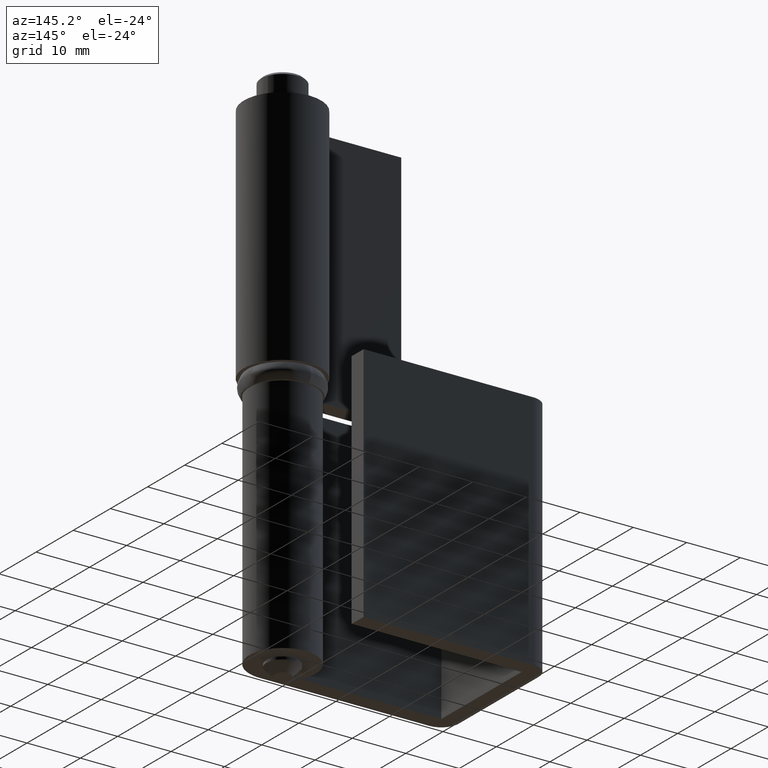
[diagram: clean part render]
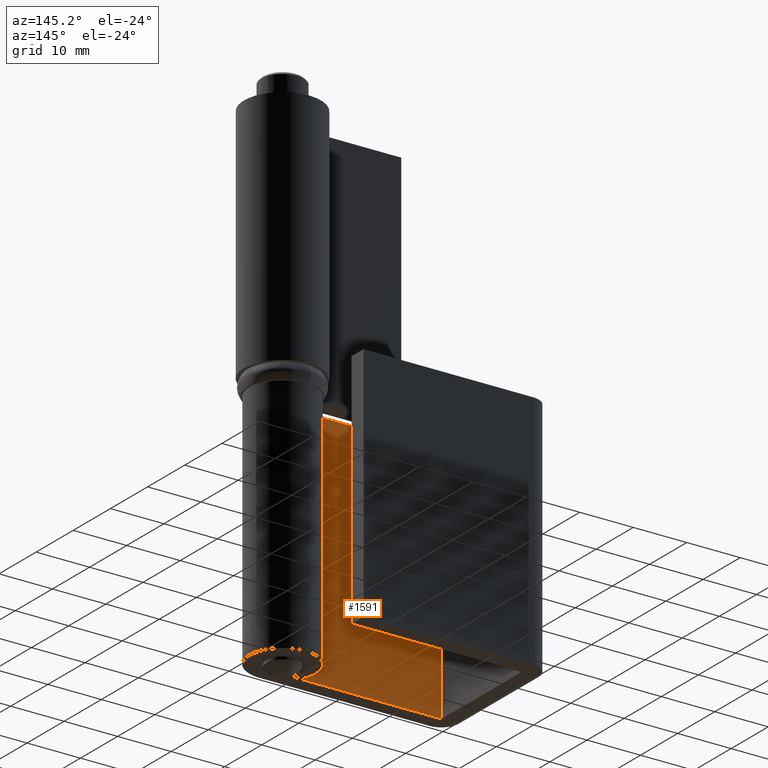
[diagram: same view with one face highlighted and labeled with its STEP entity id]
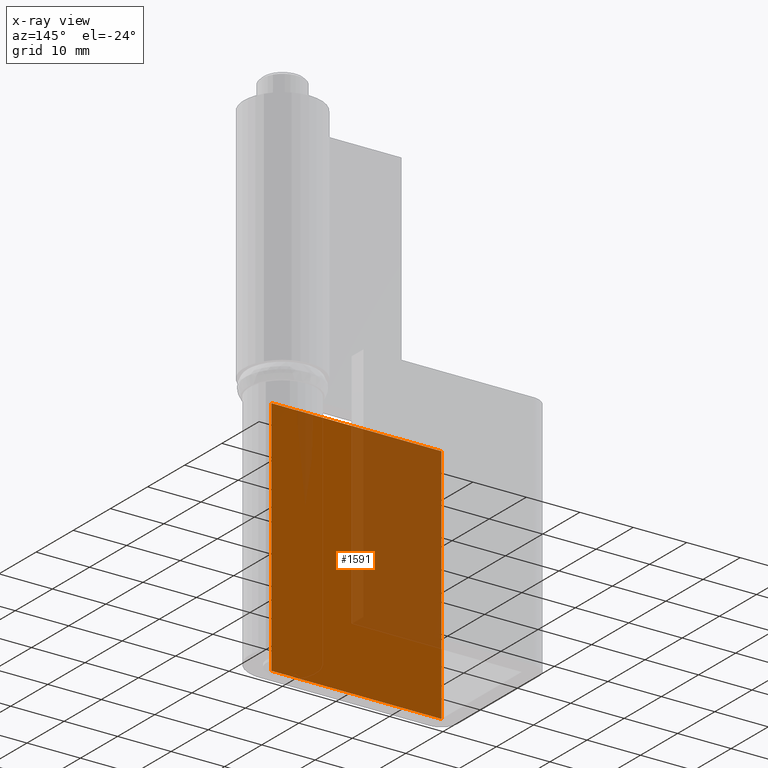
[diagram: x-ray of the same camera — body ghosted, the highlighted face saturated]
A machine part, auxiliary view. The second image highlights one B-rep face of the part: STEP entity #1591.
The next image is the same camera in x-ray: the body ghosted, the highlighted face saturated — about 41% of this face is hidden behind the body in this view.
In plain terms, the highlighted face is a freeform B-spline surface patch.
Its self-contained STEP definition (entity closure, byte-faithful):
#1298=CARTESIAN_POINT('',(-31.800003000000000,-3.0,2.0));
#1299=VERTEX_POINT('',#1298);
#1305=CARTESIAN_POINT('',(1.836910E-016,-3.0,2.0));
#1306=VERTEX_POINT('',#1305);
#1307=CARTESIAN_POINT('',(1.836910E-016,-3.0,2.0));
#1308=CARTESIAN_POINT('',(-31.800003000000000,-3.0,2.0));
#1309=QUASI_UNIFORM_CURVE('',1,(#1307,#1308),.UNSPECIFIED.,.F.,.U.);
#1310=EDGE_CURVE('',#1306,#1299,#1309,.T.);
#1520=CARTESIAN_POINT('',(1.836910E-016,-3.0,47.0));
#1521=VERTEX_POINT('',#1520);
#1541=CARTESIAN_POINT('',(-31.800003000000000,-3.0,47.0));
#1542=VERTEX_POINT('',#1541);
#1543=CARTESIAN_POINT('',(1.836910E-016,-3.0,47.0));
#1544=CARTESIAN_POINT('',(-31.800003000000000,-3.0,47.0));
#1545=QUASI_UNIFORM_CURVE('',1,(#1543,#1544),.UNSPECIFIED.,.F.,.U.);
#1546=EDGE_CURVE('',#1521,#1542,#1545,.T.);
#1568=CARTESIAN_POINT('',(-31.800003000000000,-3.0,47.0));
#1569=CARTESIAN_POINT('',(-31.800003000000000,-3.0,2.0));
#1570=QUASI_UNIFORM_CURVE('',1,(#1568,#1569),.UNSPECIFIED.,.F.,.U.);
#1571=EDGE_CURVE('',#1542,#1299,#1570,.T.);
#1576=CARTESIAN_POINT('',(-33.388413386731102,-3.0,49.247749912781281));
#1577=CARTESIAN_POINT('',(-33.388413386731102,-3.0,-0.247751119775324));
#1578=CARTESIAN_POINT('',(1.588410955359469,-3.0,49.247749912781281));
#1579=CARTESIAN_POINT('',(1.588410955359469,-3.0,-0.247751119775324));
#1580=B_SPLINE_SURFACE_WITH_KNOTS('',1,1,((#1576,#1578),(#1577,#1579)),.UNSPECIFIED.,.F.,.F.,.U.,(2,2),(2,2),(0.0,49.495501032556596),(0.0,34.976824342090573),.UNSPECIFIED.);
#1581=ORIENTED_EDGE('',*,*,#1310,.T.);
#1582=ORIENTED_EDGE('',*,*,#1571,.F.);
#1583=ORIENTED_EDGE('',*,*,#1546,.F.);
#1584=CARTESIAN_POINT('',(1.836910E-016,-3.0,47.0));
#1585=CARTESIAN_POINT('',(1.836910E-016,-3.0,2.0));
#1586=QUASI_UNIFORM_CURVE('',1,(#1584,#1585),.UNSPECIFIED.,.F.,.U.);
#1587=EDGE_CURVE('',#1521,#1306,#1586,.T.);
#1588=ORIENTED_EDGE('',*,*,#1587,.T.);
#1589=EDGE_LOOP('',(#1581,#1582,#1583,#1588));
#1590=FACE_OUTER_BOUND('',#1589,.T.);
#1591=ADVANCED_FACE('',(#1590),#1580,.F.);